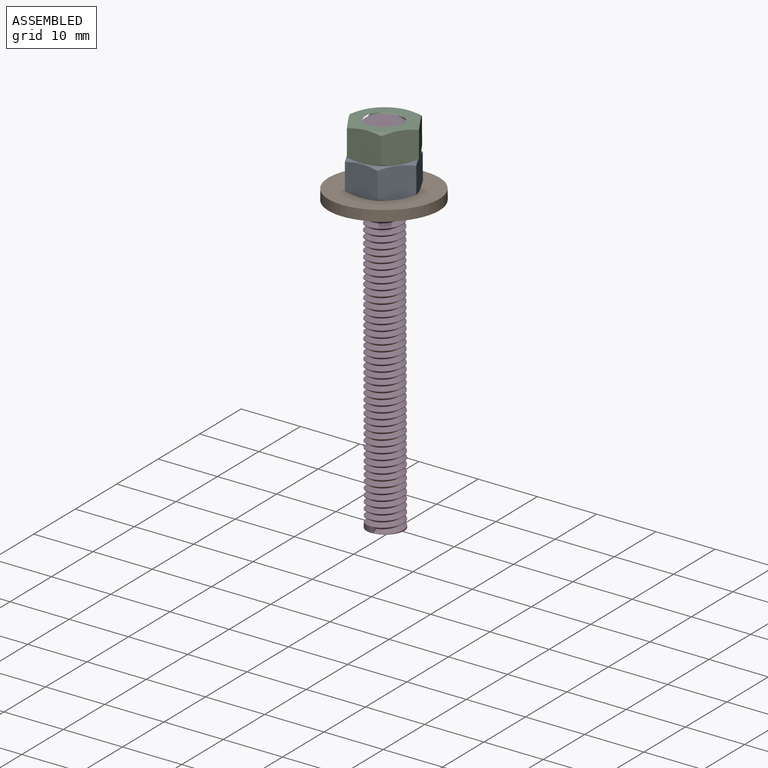
[diagram: assembled view]
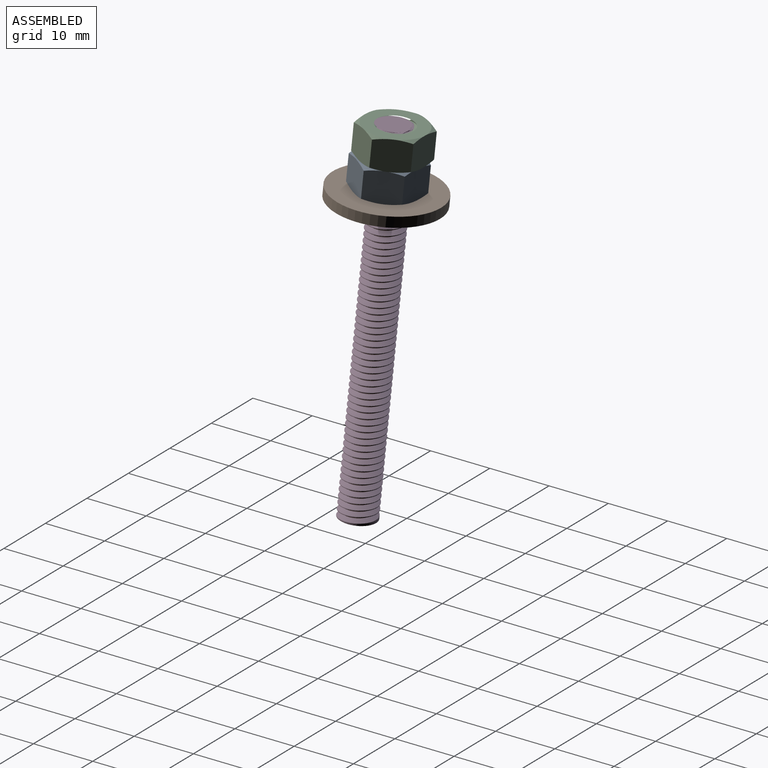
[diagram: assembled view, second angle]
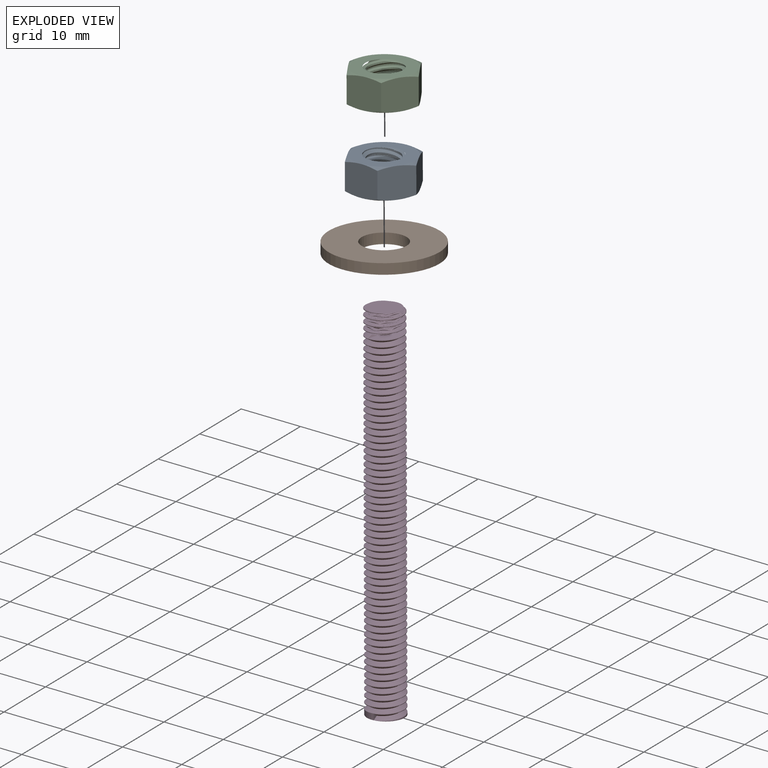
[diagram: exploded view]
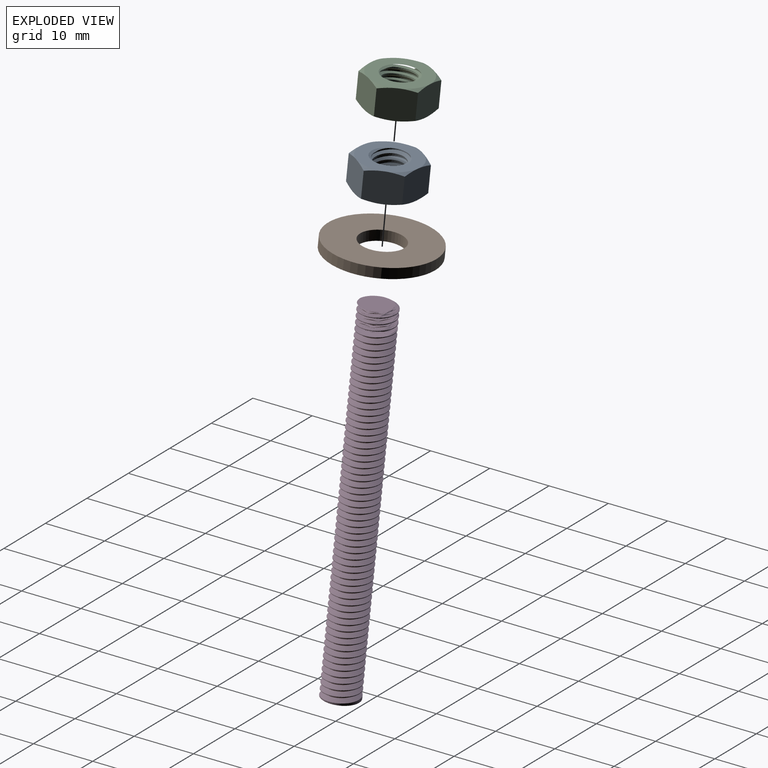
[diagram: exploded view, second angle]
ASSEMBLY  parts=4 mates=4
PART A: 49 faces, bbox 12.1x12.1x5.9 mm
  f0: cone r=2.54mm half-angle=65deg, axis (0,0,1), area 1.4mm2, adj f1,f46,f47,f48
  f1: plane 10.51x10.51mm, normal (0,0,1), area 50.3mm2, adj f0,f2,f38,f39,f40,f41,f42,f43
  f2: cylinder r=3mm len=6mm, axis (0,0,-1), area 4.4mm2, adj f1,f3,f48
  f3: cone r=3.14mm half-angle=60deg, axis (0,-0.16,0.99), area 9.8mm2, adj f2,f4
  f4: cylinder r=2.59mm len=5.19mm, axis (0,-0.16,0.99), area 4.1mm2, adj f3,f5
  f5: cone r=2.59mm half-angle=60deg, axis (0,0.16,-0.99), area 7.8mm2, adj f4,f6
  f6: cylinder r=3mm len=6mm, axis (0,0,-1), area 4.6mm2, adj f5,f7
  f7: cone r=3.14mm half-angle=60deg, axis (0,-0.16,0.99), area 8.8mm2, adj f6,f8
  f8: cylinder r=2.59mm len=5.19mm, axis (0,-0.16,0.99), area 4.1mm2, adj f7,f9
  f9: cone r=2.59mm half-angle=60deg, axis (0,0.16,-0.99), area 7.8mm2, adj f8,f10
  f10: cylinder r=3mm len=6mm, axis (0,0,-1), area 4.6mm2, adj f9,f11
  f11: cone r=3.14mm half-angle=60deg, axis (0,-0.16,0.99), area 8.8mm2, adj f10,f12
  f12: cylinder r=2.59mm len=5.19mm, axis (0,-0.16,0.99), area 4.1mm2, adj f11,f13
  f13: cone r=2.59mm half-angle=60deg, axis (0,0.16,-0.99), area 7.8mm2, adj f12,f14
  f14: cylinder r=3mm len=6mm, axis (0,0,-1), area 4.6mm2, adj f13,f15
  f15: cone r=3.14mm half-angle=60deg, axis (0,-0.16,0.99), area 8.8mm2, adj f14,f16
  f16: cylinder r=2.59mm len=5.19mm, axis (0,-0.16,0.99), area 4.1mm2, adj f15,f17
  f17: cone r=2.59mm half-angle=60deg, axis (0,0.16,-0.99), area 8.8mm2, adj f16,f18,f25
  f18: cylinder r=3mm len=6mm, axis (0,0,-1), area 3.8mm2, adj f17,f19,f25
  f19: cone r=3.14mm half-angle=60deg, axis (0,-0.16,0.99), area 4.3mm2, adj f18,f20,f23,f24
  f20: cylinder r=2.59mm len=4.9mm, axis (0,-0.16,0.99), area 1.1mm2, adj f19,f21,f23,f24
  f21: cone r=2.59mm half-angle=60deg, axis (0,0.16,-0.99), area 1.2mm2, adj f20,f22,f23,f24
  f22: cylinder r=3mm len=3.19mm, axis (0,0,-1), area 0mm2, adj f21,f25
  f23: cone r=3mm half-angle=65deg, axis (0,0,-1), area 1.6mm2, adj f19,f20,f21,f25
  f24: cone r=3mm half-angle=65deg, axis (0,0,-1), area 1.6mm2, adj f19,f20,f21,f25
  f25: plane 10x10mm, normal (0,0,-1), area 50.3mm2, adj f17,f18,f22,f23,f24,f26,f33,f34
  f26: cone r=5.77mm half-angle=65deg, axis (0,0,1), area 2.3mm2, adj f25,f27,f32
  f27: plane 5.46x5.45mm, normal (0.5,-0.87,0), area 27.4mm2, adj f26,f28,f32,f37,f43,f44
  f28: plane 5.46x5.45mm, normal (-0.5,-0.87,0), area 27.4mm2, adj f27,f29,f36,f37,f44,f45
  f29: plane 6.23x5.46mm, normal (-1,0,0), area 27.4mm2, adj f28,f30,f35,f36,f40,f45
  f30: plane 5.46x5.45mm, normal (-0.5,0.87,0), area 27.4mm2, adj f29,f31,f34,f35,f40,f41
  f31: plane 5.46x5.45mm, normal (0.5,0.87,0), area 27.4mm2, adj f30,f32,f33,f34,f41,f42
  f32: plane 6.23x5.46mm, normal (1,0,0), area 27.4mm2, adj f26,f27,f31,f33,f42,f43
  f33: cone r=5.77mm half-angle=65deg, axis (0,0,1), area 2.3mm2, adj f25,f31,f32
  f34: cone r=5.77mm half-angle=65deg, axis (0,0,1), area 2.3mm2, adj f25,f30,f31
  f35: cone r=5.77mm half-angle=65deg, axis (0,0,1), area 2.3mm2, adj f25,f29,f30
  f36: cone r=5.77mm half-angle=65deg, axis (0,0,1), area 2.3mm2, adj f25,f28,f29
  f37: cone r=5.77mm half-angle=65deg, axis (0,0,1), area 2.3mm2, adj f25,f27,f28
  f38: cylinder r=3mm len=4.95mm, axis (0,0,-1), area 0mm2, adj f1,f46
  f39: cone r=2.54mm half-angle=65deg, axis (0,0,1), area 1.4mm2, adj f1,f46,f47,f48
  f40: cone r=5mm half-angle=65deg, axis (0,0,-1), area 2.3mm2, adj f1,f29,f30
  f41: cone r=5mm half-angle=65deg, axis (0,0,-1), area 2.3mm2, adj f1,f30,f31
  f42: cone r=5mm half-angle=65deg, axis (0,0,-1), area 2.3mm2, adj f1,f31,f32
  f43: cone r=5mm half-angle=65deg, axis (0,0,-1), area 2.3mm2, adj f1,f27,f32
  f44: cone r=5mm half-angle=65deg, axis (0,0,-1), area 2.3mm2, adj f1,f27,f28
  f45: cone r=5mm half-angle=65deg, axis (0,0,-1), area 2.3mm2, adj f1,f28,f29
  f46: cone r=3.14mm half-angle=60deg, axis (0,-0.16,0.99), area 2.4mm2, adj f0,f38,f39,f47
  f47: cylinder r=2.59mm len=5.19mm, axis (0,-0.16,0.99), area 1.7mm2, adj f0,f39,f46,f48
  f48: cone r=2.59mm half-angle=60deg, axis (0,0.16,-0.99), area 5.2mm2, adj f0,f2,f39,f47
PART B: 4 faces, bbox 1.7x17.6x17.6 mm
  f0: cylinder r=8.82mm len=17.64mm, axis (-1,0,0), area 94.2mm2, adj f1,f2
  f1: plane 17.64x17.64mm, normal (1,0,0), area 204mm2, adj f0,f3
  f2: plane 17.64x17.64mm, normal (-1,0,0), area 204mm2, adj f0,f3
  f3: cylinder r=3.59mm len=7.18mm, axis (1,0,0), area 38.3mm2, adj f1,f2
PART C: same geometry as A
PART D: 6 faces, bbox 61.1x7.5x6.6 mm
  f0: cylinder r=3mm len=60mm, axis (-1,0,0), area 232.9mm2, adj f1,f2,f3,f4,f5
  f1: plane 6x6mm, normal (1,0,0), area 28.3mm2, adj f0
  f2: plane 5.92x5.89mm, normal (-1,0,0), area 22.3mm2, adj f0,f3,f4
  f3: bspline ~60.11x6.93mm, area 876.3mm2, adj f0,f2,f4,f5
  f4: bspline ~60.45x6.93mm, area 883.4mm2, adj f0,f2,f3,f5
  f5: plane 0.9x0.78mm, normal (0,1,0), area 0.3mm2, adj f0,f3,f4
PLACE A rot(axis=(-0.06,0.01,1),86.2deg) t=(-8.82,-27.25,27.45)mm
PLACE B rot(axis=(0,1,-0.07),87deg) t=(-8.69,-27.43,24.96)mm
PLACE C rot(axis=(-0.01,-0.06,-1),89.3deg) t=(-9.18,-26.58,32.4)mm
PLACE D rot(axis=(0.58,0.56,-0.59),115.5deg) t=(-9.31,-26.41,34.89)mm
MATE planar C.f0 <-> A.f0  axis (0.05,-0.07,-1) through (-9.05,-26.76,29.91)mm
MATE revolute A.f0 <-> B.f0  axis (0.05,-0.07,-1) through (-8.69,-27.43,24.96)mm
MATE cylindrical D.f2 <-> A.f0  axis (-0.05,0.07,1) through (-9.21,-26.73,34.92)mm
MATE fastened C.f0 <-> D.f0  axis (-0.05,0.07,1) through (-9.31,-26.41,34.89)mm
